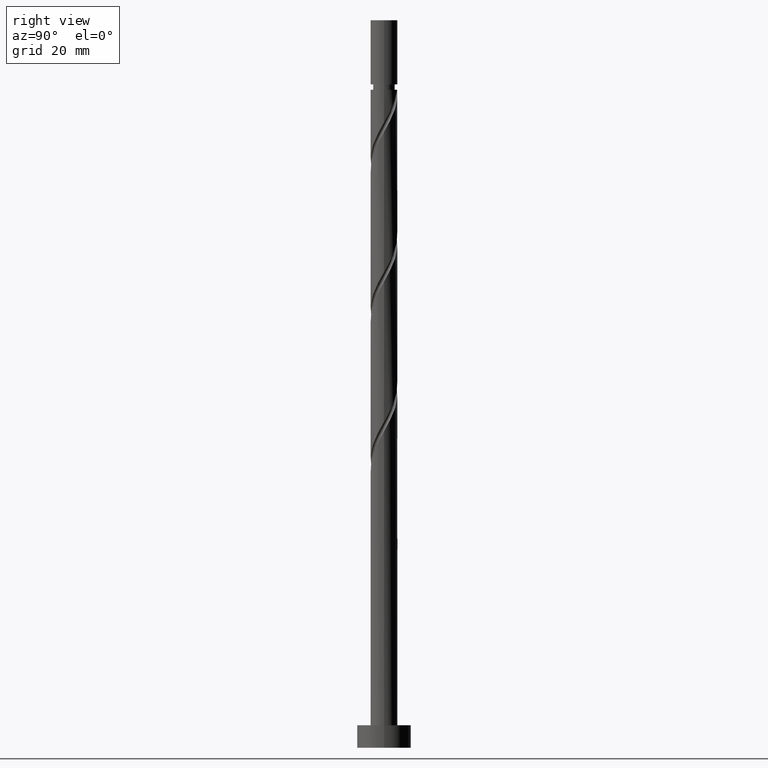
[diagram: clean part render]
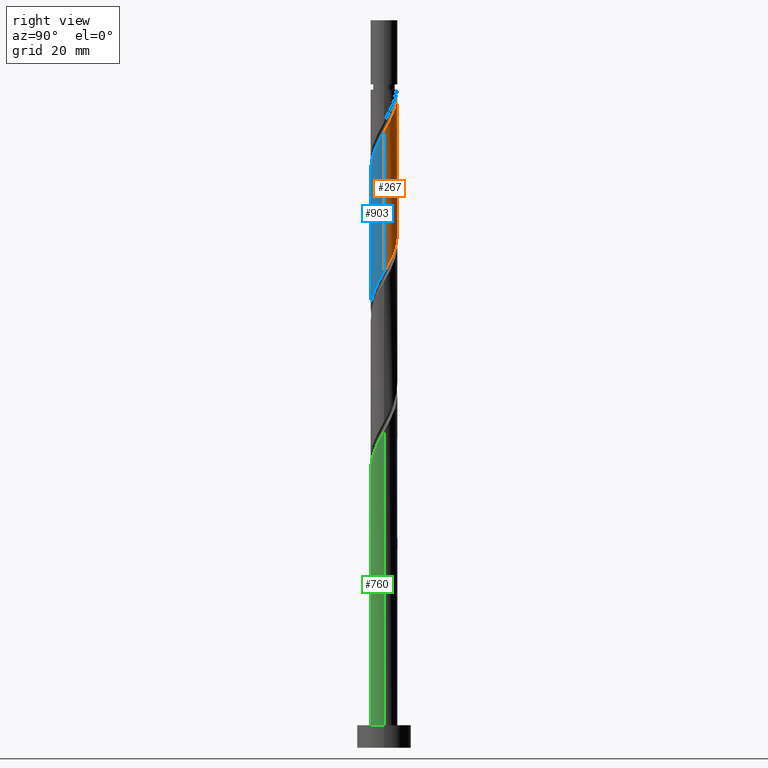
[diagram: same view with three faces highlighted in distinct colors, each labeled with its STEP entity id]
A machine part, right view with three faces highlighted in distinct colors.
Their STEP definitions:

[orange] entity #267 — the highlighted cylindrical surface (edge-blend (fillet) strip) has radius 3 mm, axis along (-0, -0, -1).
#2 = CARTESIAN_POINT ( 'NONE',  ( 2.247618455994269127, 1.987010638188424050, 140.9712133267967715 ) ) ;
#3 = CARTESIAN_POINT ( 'NONE',  ( 2.970074347914948731, 0.5784892297585030319, 106.9434355490189574 ) ) ;
#15 = CARTESIAN_POINT ( 'NONE',  ( -0.9529893618115770071, 2.844610918258236865, 115.9712133267967431 ) ) ;
#79 = ORIENTED_EDGE ( 'NONE', *, *, #499, .T. ) ;
#103 = LINE ( 'NONE', #1462, #628 ) ;
#115 = EDGE_CURVE ( 'NONE', #1361, #215, #1725, .T. ) ;
#127 = CARTESIAN_POINT ( 'NONE',  ( -2.247618455994264242, 1.987010638188423606, 118.7489911045745572 ) ) ;
#136 = DIRECTION ( 'NONE',  ( -1.000000000000000000, 0.000000000000000000, 0.000000000000000000 ) ) ;
#158 = CARTESIAN_POINT ( 'NONE',  ( 1.691106054833253491, 2.509213369244493563, 111.1101022156856288 ) ) ;
#215 = VERTEX_POINT ( 'NONE', #1712 ) ;
#230 = CYLINDRICAL_SURFACE ( 'NONE', #393, 3.000000000000000444 ) ;
#238 = DIRECTION ( 'NONE',  ( -0.000000000000000000, -0.000000000000000000, -1.000000000000000000 ) ) ;
#252 = CARTESIAN_POINT ( 'NONE',  ( 0.5784892297585081389, 2.970074347914953172, 144.4434355490189432 ) ) ;
#261 = CARTESIAN_POINT ( 'NONE',  ( 1.986023542744038251, 2.282915221543595496, 141.6656577712411433 ) ) ;
#267 = ADVANCED_FACE ( 'NONE', ( #1460 ), #230, .T. ) ;
#270 = CARTESIAN_POINT ( 'NONE',  ( 2.501031355072560025, 1.656756518304340675, 109.0267688823523144 ) ) ;
#377 = CARTESIAN_POINT ( 'NONE',  ( 3.000000000000005329, 0.3015113445777617973, 137.6632952629982185 ) ) ;
#393 = AXIS2_PLACEMENT_3D ( 'NONE', #1325, #238, #783 ) ;
#394 = CARTESIAN_POINT ( 'NONE',  ( -3.000000000000000444, 1.973899546557867434E-15, 122.5903355375623676 ) ) ;
#398 = CARTESIAN_POINT ( 'NONE',  ( 3.000000000000000888, 0.09222585497301757917, 106.0868325589238594 ) ) ;
#399 = CARTESIAN_POINT ( 'NONE',  ( -1.656756518304340897, 2.501031355072560025, 117.3601022156856146 ) ) ;
#407 = CARTESIAN_POINT ( 'NONE',  ( 2.719147488601524110, 1.327489493864646874, 108.3323244379078432 ) ) ;
#415 = CARTESIAN_POINT ( 'NONE',  ( 2.685308910273302985, 1.337578430002084540, 139.5823244379078290 ) ) ;
#416 = CARTESIAN_POINT ( 'NONE',  ( -0.5969924622639716238, 2.940000000000000835, 146.5267688823522860 ) ) ;
#428 = VERTEX_POINT ( 'NONE', #792 ) ;
#452 = CARTESIAN_POINT ( 'NONE',  ( -0.5784892297585046972, 2.970074347914948731, 115.2767688823522860 ) ) ;
#499 = EDGE_CURVE ( 'NONE', #428, #588, #103, .T. ) ;
#502 = ORIENTED_EDGE ( 'NONE', *, *, #1328, .F. ) ;
#512 = CARTESIAN_POINT ( 'NONE',  ( -2.940000000000000835, 0.5969924622639725120, 121.5267688823523287 ) ) ;
#522 = CARTESIAN_POINT ( 'NONE',  ( -2.685308910273296323, 1.337578430002084540, 120.1378799934634429 ) ) ;
#551 = CARTESIAN_POINT ( 'NONE',  ( 0.9529893618115807818, 2.844610918258240417, 143.7489911045745714 ) ) ;
#559 = CARTESIAN_POINT ( 'NONE',  ( 0.9840508051709188075, 2.861404451302097751, 112.4989911045745146 ) ) ;
#582 = CARTESIAN_POINT ( 'NONE',  ( -1.327489493864648873, 2.719147488601523666, 116.6656577712411718 ) ) ;
#588 = VERTEX_POINT ( 'NONE', #1402 ) ;
#628 = VECTOR ( 'NONE', #1327, 1000.000000000000000 ) ;
#684 = CARTESIAN_POINT ( 'NONE',  ( 2.994334948306425659, 0.1842775552007367701, 106.2489911045745288 ) ) ;
#695 = EDGE_LOOP ( 'NONE', ( #502, #79, #1675, #897, #1018 ) ) ;
#737 = VECTOR ( 'NONE', #926, 1000.000000000000000 ) ;
#783 = DIRECTION ( 'NONE',  ( -1.000000000000000000, 0.000000000000000000, 0.000000000000000000 ) ) ;
#792 = CARTESIAN_POINT ( 'NONE',  ( 3.000000000000005329, -1.405655737700290034E-15, 137.1298688938089185 ) ) ;
#800 = EDGE_CURVE ( 'NONE', #215, #588, #847, .T. ) ;
#810 = CARTESIAN_POINT ( 'NONE',  ( -0.5969924622639717349, 2.940000000000000835, 146.5267688823522860 ) ) ;
#816 = CARTESIAN_POINT ( 'NONE',  ( 3.000000000000005329, -1.405655737700290232E-15, 137.1298688938089185 ) ) ;
#817 = DIRECTION ( 'NONE',  ( -0.000000000000000000, -0.000000000000000000, -1.000000000000000000 ) ) ;
#818 = CARTESIAN_POINT ( 'NONE',  ( -2.509213369244495340, 1.691106054833251493, 119.4434355490189574 ) ) ;
#827 = VERTEX_POINT ( 'NONE', #416 ) ;
#835 = CARTESIAN_POINT ( 'NONE',  ( 2.282915221543594608, 1.986023542744031589, 109.7212133267967289 ) ) ;
#847 =( BOUNDED_CURVE ( )  B_SPLINE_CURVE ( 2, ( #394, #1497, #512, #1718, #522, #818, #127, #1620, #399, #582, #15, #452, #858, #939, #1475, #559, #1496, #158, #976, #835, #270, #407, #1612, #3, #684, #398, #1224 ),
 .UNSPECIFIED., .F., .T. ) 
 B_SPLINE_CURVE_WITH_KNOTS ( ( 3, 2, 2, 2, 2, 2, 2, 2, 2, 2, 2, 2, 2, 3 ),
 ( 0.4295317669814464612, 0.4375000000000000000, 0.4479166666666666852, 0.4583333333333333148, 0.4687500000000000000, 0.4791666666666666852, 0.4895833333333333148, 0.5000000000000000000, 0.5104166666666666297, 0.5208333333333333703, 0.5312500000000000000, 0.5416666666666666297, 0.5520833333333333703, 0.5545317669814463502 ),
 .UNSPECIFIED. ) 
 CURVE ( )  GEOMETRIC_REPRESENTATION_ITEM ( )  RATIONAL_B_SPLINE_CURVE ( ( 0.9062941362546369506, 0.9031415850403414769, 0.9090909090909166101, 0.9013135103398351999, 0.9090909090909166101, 0.9013135103398351999, 0.9090909090909166101, 0.9013135103398351999, 0.9090909090909166101, 0.9013135103398351999, 0.9090909090909166101, 0.9013135103398351999, 0.9090909090909166101, 0.9013135103398351999, 0.9090909090909166101, 0.9013135103398351999, 0.9090909090909166101, 0.9013135103398351999, 0.9090909090909166101, 0.9013135103398351999, 0.9090909090909166101, 0.9013135103398351999, 0.9090909090909166101, 0.9013135103398351999, 0.9090909090909166101, 0.9072628343904103332, 0.9062941362546369506 ) ) 
 REPRESENTATION_ITEM ( '' )  );
#858 = CARTESIAN_POINT ( 'NONE',  ( -0.1842775552007381856, 2.994334948306425659, 114.5823244379078574 ) ) ;
#897 = ORIENTED_EDGE ( 'NONE', *, *, #115, .F. ) ;
#921 = CARTESIAN_POINT ( 'NONE',  ( 2.509213369244500225, 1.691106054833252381, 140.2767688823522860 ) ) ;
#926 = DIRECTION ( 'NONE',  ( -0.000000000000000000, -0.000000000000000000, -1.000000000000000000 ) ) ;
#928 = CARTESIAN_POINT ( 'NONE',  ( 1.656756518304344672, 2.501031355072561801, 142.3601022156856288 ) ) ;
#939 = CARTESIAN_POINT ( 'NONE',  ( 0.2099341193570284925, 3.018595548697901698, 113.8878799934634003 ) ) ;
#955 = EDGE_CURVE ( 'NONE', #1361, #827, #1185, .T. ) ;
#957 = CARTESIAN_POINT ( 'NONE',  ( -0.2099341193570253006, 3.018595548697906139, 145.8323244379078574 ) ) ;
#976 = CARTESIAN_POINT ( 'NONE',  ( 1.987010638188424938, 2.247618455994262465, 110.4156577712412144 ) ) ;
#1018 = ORIENTED_EDGE ( 'NONE', *, *, #955, .T. ) ;
#1023 =( BOUNDED_CURVE ( )  B_SPLINE_CURVE ( 2, ( #816, #377, #1203, #1067, #415, #921, #2, #261, #928, #1729, #551, #252, #1358, #957, #810 ),
 .UNSPECIFIED., .F., .F. ) 
 B_SPLINE_CURVE_WITH_KNOTS ( ( 3, 2, 2, 2, 2, 2, 2, 3 ),
 ( 0.6795317669814462391, 0.6875000000000000000, 0.6979166666666667407, 0.7083333333333332593, 0.7187500000000000000, 0.7291666666666667407, 0.7395833333333332593, 0.7500000000000000000 ),
 .UNSPECIFIED. ) 
 CURVE ( )  GEOMETRIC_REPRESENTATION_ITEM ( )  RATIONAL_B_SPLINE_CURVE ( ( 0.9062941362546431678, 0.9031415850403474721, 0.9090909090909228274, 0.9013135103398413062, 0.9090909090909228274, 0.9013135103398413062, 0.9090909090909228274, 0.9013135103398413062, 0.9090909090909228274, 0.9013135103398413062, 0.9090909090909228274, 0.9013135103398413062, 0.9090909090909228274, 0.9013135103398413062, 0.9090909090909228274 ) ) 
 REPRESENTATION_ITEM ( '' )  );
#1067 = CARTESIAN_POINT ( 'NONE',  ( 2.861404451302104412, 0.9840508051709162540, 138.8878799934633435 ) ) ;
#1185 = CIRCLE ( 'NONE', #1329, 2.999999999999994671 ) ;
#1203 = CARTESIAN_POINT ( 'NONE',  ( 2.940000000000005720, 0.5969924622639724010, 138.1934355490190285 ) ) ;
#1224 = CARTESIAN_POINT ( 'NONE',  ( 3.000000000000000888, -3.738446110905052766E-15, 105.9236688708956962 ) ) ;
#1325 = CARTESIAN_POINT ( 'NONE',  ( 0.000000000000000000, 0.000000000000000000, 162.0000000000000000 ) ) ;
#1327 = DIRECTION ( 'NONE',  ( -0.000000000000000000, -0.000000000000000000, -1.000000000000000000 ) ) ;
#1328 = EDGE_CURVE ( 'NONE', #428, #827, #1023, .T. ) ;
#1329 = AXIS2_PLACEMENT_3D ( 'NONE', #1379, #817, #136 ) ;
#1358 = CARTESIAN_POINT ( 'NONE',  ( 0.1842775552007414608, 2.994334948306429656, 145.1378799934634571 ) ) ;
#1361 = VERTEX_POINT ( 'NONE', #1457 ) ;
#1379 = CARTESIAN_POINT ( 'NONE',  ( 0.000000000000000000, 0.000000000000000000, 146.5267688823523144 ) ) ;
#1402 = CARTESIAN_POINT ( 'NONE',  ( 3.000000000000000888, -3.738446110905052766E-15, 105.9236688708956962 ) ) ;
#1455 = CARTESIAN_POINT ( 'NONE',  ( -3.000000000000000444, 0.000000000000000000, 162.0000000000000000 ) ) ;
#1457 = CARTESIAN_POINT ( 'NONE',  ( -2.999999999999994671, 0.000000000000000000, 146.5267688823523144 ) ) ;
#1460 = FACE_OUTER_BOUND ( 'NONE', #695, .T. ) ;
#1462 = CARTESIAN_POINT ( 'NONE',  ( 3.000000000000000444, 3.673940397442060361E-16, 162.0000000000000000 ) ) ;
#1475 = CARTESIAN_POINT ( 'NONE',  ( 0.5969924622639731782, 2.940000000000000835, 113.1934355490189716 ) ) ;
#1496 = CARTESIAN_POINT ( 'NONE',  ( 1.337578430002086538, 2.685308910273295435, 111.8045466601301001 ) ) ;
#1497 = CARTESIAN_POINT ( 'NONE',  ( -3.000000000000000444, 0.3015113445777714007, 122.0569091683731244 ) ) ;
#1612 = CARTESIAN_POINT ( 'NONE',  ( 2.844610918258237753, 0.9529893618115753418, 107.6378799934634287 ) ) ;
#1620 = CARTESIAN_POINT ( 'NONE',  ( -1.986023542744032921, 2.282915221543593720, 118.0545466601300717 ) ) ;
#1675 = ORIENTED_EDGE ( 'NONE', *, *, #800, .F. ) ;
#1712 = CARTESIAN_POINT ( 'NONE',  ( -3.000000000000000444, 1.973899546557867434E-15, 122.5903355375623676 ) ) ;
#1718 = CARTESIAN_POINT ( 'NONE',  ( -2.861404451302098639, 0.9840508051709164761, 120.8323244379078290 ) ) ;
#1725 = LINE ( 'NONE', #1455, #737 ) ;
#1729 = CARTESIAN_POINT ( 'NONE',  ( 1.327489493864653314, 2.719147488601527662, 143.0545466601300575 ) ) ;

[blue] entity #903 — the highlighted cylindrical surface (edge-blend (fillet) strip) has radius 3 mm, axis along (-0, -0, -1).
#10 = CARTESIAN_POINT ( 'NONE',  ( 0.9529893618115764520, -2.844610918258237309, 99.30454666013010012 ) ) ;
#20 = DIRECTION ( 'NONE',  ( -0.000000000000000000, -0.000000000000000000, -1.000000000000000000 ) ) ;
#45 = CARTESIAN_POINT ( 'NONE',  ( 1.656756518304339565, -2.501031355072560025, 100.6934355490189859 ) ) ;
#47 = ORIENTED_EDGE ( 'NONE', *, *, #1706, .T. ) ;
#65 = EDGE_CURVE ( 'NONE', #633, #428, #659, .T. ) ;
#72 = CARTESIAN_POINT ( 'NONE',  ( -3.000000000000000444, 0.000000000000000000, 162.0000000000000000 ) ) ;
#103 = LINE ( 'NONE', #1462, #628 ) ;
#131 = CARTESIAN_POINT ( 'NONE',  ( 1.337578430002084540, -2.685308910273302985, 131.2489911045745146 ) ) ;
#157 = CARTESIAN_POINT ( 'NONE',  ( 3.000000000000000888, -0.3015113445777659607, 105.3902425017064246 ) ) ;
#162 = CARTESIAN_POINT ( 'NONE',  ( -2.861404451302104412, -0.9840508051709164761, 122.2212133267967573 ) ) ;
#182 = CARTESIAN_POINT ( 'NONE',  ( -3.000000000000000888, -0.09222585497301845348, 89.42016589225718803 ) ) ;
#189 = CARTESIAN_POINT ( 'NONE',  ( 2.994334948306429656, -0.1842775552007413498, 136.8045466601300859 ) ) ;
#224 = LINE ( 'NONE', #72, #832 ) ;
#256 = CARTESIAN_POINT ( 'NONE',  ( -3.000000000000000888, -5.398316184146896257E-15, 89.25700220422902476 ) ) ;
#285 = CARTESIAN_POINT ( 'NONE',  ( 1.327489493864648207, -2.719147488601524110, 99.99899110457447193 ) ) ;
#288 = ORIENTED_EDGE ( 'NONE', *, *, #65, .F. ) ;
#290 = CARTESIAN_POINT ( 'NONE',  ( -0.9529893618115804488, -2.844610918258240417, 127.0823244379078716 ) ) ;
#293 = CARTESIAN_POINT ( 'NONE',  ( 0.1842775552007368811, -2.994334948306425659, 97.91565777124120018 ) ) ;
#308 = CARTESIAN_POINT ( 'NONE',  ( -2.994334948306425659, -0.1842775552007378248, 89.58232443790787158 ) ) ;
#325 = CARTESIAN_POINT ( 'NONE',  ( 2.844610918258240861, -0.9529893618115807818, 135.4156577712412286 ) ) ;
#424 = CARTESIAN_POINT ( 'NONE',  ( -0.5969924622639727341, -2.940000000000000835, 96.52676888235232866 ) ) ;
#428 = VERTEX_POINT ( 'NONE', #792 ) ;
#437 = CARTESIAN_POINT ( 'NONE',  ( -2.247618455994267350, -1.987010638188425382, 124.3045466601300859 ) ) ;
#445 = CARTESIAN_POINT ( 'NONE',  ( -1.986023542744037140, -2.282915221543596385, 124.9989911045744861 ) ) ;
#475 = CARTESIAN_POINT ( 'NONE',  ( 3.000000000000005329, -0.09222585497302299151, 136.9667052057807837 ) ) ;
#499 = EDGE_CURVE ( 'NONE', #428, #588, #103, .T. ) ;
#544 = AXIS2_PLACEMENT_3D ( 'NONE', #1483, #20, #1214 ) ;
#556 = CARTESIAN_POINT ( 'NONE',  ( 1.987010638188425382, -2.247618455994267794, 132.6378799934634287 ) ) ;
#565 = CARTESIAN_POINT ( 'NONE',  ( -1.691106054833251937, -2.509213369244495340, 94.44343554901892901 ) ) ;
#569 = CARTESIAN_POINT ( 'NONE',  ( -3.000000000000005329, -0.3015113445777636847, 120.9966285963315187 ) ) ;
#571 = CARTESIAN_POINT ( 'NONE',  ( 2.247618455994262909, -1.987010638188424938, 102.0823244379078574 ) ) ;
#575 = CARTESIAN_POINT ( 'NONE',  ( 2.282915221543596385, -1.986023542744037140, 133.3323244379078574 ) ) ;
#577 = CARTESIAN_POINT ( 'NONE',  ( -2.970074347914947843, -0.5784892297585041421, 90.27676888235230024 ) ) ;
#588 = VERTEX_POINT ( 'NONE', #1402 ) ;
#597 = CARTESIAN_POINT ( 'NONE',  ( -0.9840508051709171422, -2.861404451302098639, 95.83232443790782895 ) ) ;
#628 = VECTOR ( 'NONE', #1327, 1000.000000000000000 ) ;
#633 = VERTEX_POINT ( 'NONE', #1750 ) ;
#641 = CARTESIAN_POINT ( 'NONE',  ( 3.000000000000005329, -1.405655737700290232E-15, 137.1298688938089185 ) ) ;
#659 =( BOUNDED_CURVE ( )  B_SPLINE_CURVE ( 2, ( #1645, #569, #688, #162, #1081, #1098, #437, #445, #970, #1500, #290, #1486, #1513, #713, #840, #986, #131, #1243, #556, #575, #1107, #1134, #325, #875, #189, #475, #641 ),
 .UNSPECIFIED., .F., .T. ) 
 B_SPLINE_CURVE_WITH_KNOTS ( ( 3, 2, 2, 2, 2, 2, 2, 2, 2, 2, 2, 2, 2, 3 ),
 ( 0.5545317669814462391, 0.5625000000000000000, 0.5729166666666667407, 0.5833333333333332593, 0.5937500000000000000, 0.6041666666666667407, 0.6145833333333332593, 0.6250000000000000000, 0.6354166666666667407, 0.6458333333333332593, 0.6562500000000000000, 0.6666666666666667407, 0.6770833333333332593, 0.6795317669814462391 ),
 .UNSPECIFIED. ) 
 CURVE ( )  GEOMETRIC_REPRESENTATION_ITEM ( )  RATIONAL_B_SPLINE_CURVE ( ( 0.9062941362546431678, 0.9031415850403474721, 0.9090909090909228274, 0.9013135103398413062, 0.9090909090909228274, 0.9013135103398413062, 0.9090909090909228274, 0.9013135103398413062, 0.9090909090909228274, 0.9013135103398413062, 0.9090909090909228274, 0.9013135103398413062, 0.9090909090909228274, 0.9013135103398413062, 0.9090909090909228274, 0.9013135103398413062, 0.9090909090909228274, 0.9013135103398413062, 0.9090909090909228274, 0.9013135103398413062, 0.9090909090909228274, 0.9013135103398413062, 0.9090909090909228274, 0.9013135103398413062, 0.9090909090909228274, 0.9072628343904165504, 0.9062941362546431678 ) ) 
 REPRESENTATION_ITEM ( '' )  );
#688 = CARTESIAN_POINT ( 'NONE',  ( -2.940000000000005720, -0.5969924622639727341, 121.5267688823523429 ) ) ;
#707 = CARTESIAN_POINT ( 'NONE',  ( -1.337578430002084762, -2.685308910273296323, 95.13787999346341451 ) ) ;
#713 = CARTESIAN_POINT ( 'NONE',  ( 0.2099341193570271047, -3.018595548697906139, 129.1656577712411718 ) ) ;
#740 = VERTEX_POINT ( 'NONE', #256 ) ;
#792 = CARTESIAN_POINT ( 'NONE',  ( 3.000000000000005329, -1.405655737700290034E-15, 137.1298688938089185 ) ) ;
#832 = VECTOR ( 'NONE', #1535, 1000.000000000000000 ) ;
#834 = CARTESIAN_POINT ( 'NONE',  ( -2.844610918258236865, -0.9529893618115766740, 90.97121332679675731 ) ) ;
#840 = CARTESIAN_POINT ( 'NONE',  ( 0.5969924622639725120, -2.940000000000005720, 129.8601022156856288 ) ) ;
#875 = CARTESIAN_POINT ( 'NONE',  ( 2.970074347914952728, -0.5784892297585078058, 136.1101022156856288 ) ) ;
#903 = ADVANCED_FACE ( 'NONE', ( #1239 ), #1491, .T. ) ;
#965 = CARTESIAN_POINT ( 'NONE',  ( -2.719147488601524110, -1.327489493864648207, 91.66565777124118597 ) ) ;
#970 = CARTESIAN_POINT ( 'NONE',  ( -1.656756518304344228, -2.501031355072562690, 125.6934355490189859 ) ) ;
#974 = CARTESIAN_POINT ( 'NONE',  ( 2.940000000000000835, -0.5969924622639729561, 104.8601022156856430 ) ) ;
#986 = CARTESIAN_POINT ( 'NONE',  ( 0.9840508051709162540, -2.861404451302104412, 130.5545466601300575 ) ) ;
#996 = CARTESIAN_POINT ( 'NONE',  ( -3.000000000000000888, -5.398316184146896257E-15, 89.25700220422902476 ) ) ;
#1081 = CARTESIAN_POINT ( 'NONE',  ( -2.685308910273302541, -1.337578430002085428, 122.9156577712412144 ) ) ;
#1098 = CARTESIAN_POINT ( 'NONE',  ( -2.509213369244499781, -1.691106054833252825, 123.6101022156856146 ) ) ;
#1107 = CARTESIAN_POINT ( 'NONE',  ( 2.501031355072561801, -1.656756518304345338, 134.0267688823522576 ) ) ;
#1109 = CARTESIAN_POINT ( 'NONE',  ( 3.000000000000000888, -3.738446110905052766E-15, 105.9236688708956962 ) ) ;
#1127 = CARTESIAN_POINT ( 'NONE',  ( -2.501031355072559137, -1.656756518304340897, 92.36010221568565726 ) ) ;
#1134 = CARTESIAN_POINT ( 'NONE',  ( 2.719147488601527662, -1.327489493864652870, 134.7212133267967431 ) ) ;
#1205 =( BOUNDED_CURVE ( )  B_SPLINE_CURVE ( 2, ( #1109, #157, #974, #1495, #1404, #1517, #571, #1262, #45, #285, #10, #1503, #293, #1640, #424, #597, #707, #565, #1232, #1508, #1127, #965, #834, #577, #308, #182, #996 ),
 .UNSPECIFIED., .F., .T. ) 
 B_SPLINE_CURVE_WITH_KNOTS ( ( 3, 2, 2, 2, 2, 2, 2, 2, 2, 2, 2, 2, 2, 3 ),
 ( 0.5545317669814463502, 0.5625000000000000000, 0.5729166666666666297, 0.5833333333333333703, 0.5937500000000000000, 0.6041666666666666297, 0.6145833333333333703, 0.6250000000000000000, 0.6354166666666666297, 0.6458333333333333703, 0.6562500000000000000, 0.6666666666666666297, 0.6770833333333333703, 0.6795317669814463502 ),
 .UNSPECIFIED. ) 
 CURVE ( )  GEOMETRIC_REPRESENTATION_ITEM ( )  RATIONAL_B_SPLINE_CURVE ( ( 0.9062941362546369506, 0.9031415850403413659, 0.9090909090909166101, 0.9013135103398351999, 0.9090909090909166101, 0.9013135103398351999, 0.9090909090909166101, 0.9013135103398351999, 0.9090909090909166101, 0.9013135103398351999, 0.9090909090909166101, 0.9013135103398351999, 0.9090909090909166101, 0.9013135103398351999, 0.9090909090909166101, 0.9013135103398351999, 0.9090909090909166101, 0.9013135103398351999, 0.9090909090909166101, 0.9013135103398351999, 0.9090909090909166101, 0.9013135103398351999, 0.9090909090909166101, 0.9013135103398351999, 0.9090909090909166101, 0.9072628343904103332, 0.9062941362546369506 ) ) 
 REPRESENTATION_ITEM ( '' )  );
#1214 = DIRECTION ( 'NONE',  ( -1.000000000000000000, 0.000000000000000000, 0.000000000000000000 ) ) ;
#1232 = CARTESIAN_POINT ( 'NONE',  ( -1.987010638188424938, -2.247618455994264242, 93.74899110457452878 ) ) ;
#1239 = FACE_OUTER_BOUND ( 'NONE', #1556, .T. ) ;
#1243 = CARTESIAN_POINT ( 'NONE',  ( 1.691106054833252381, -2.509213369244500225, 131.9434355490189432 ) ) ;
#1262 = CARTESIAN_POINT ( 'NONE',  ( 1.986023542744031589, -2.282915221543594164, 101.3878799934633861 ) ) ;
#1284 = ORIENTED_EDGE ( 'NONE', *, *, #1574, .F. ) ;
#1327 = DIRECTION ( 'NONE',  ( -0.000000000000000000, -0.000000000000000000, -1.000000000000000000 ) ) ;
#1384 = ORIENTED_EDGE ( 'NONE', *, *, #499, .F. ) ;
#1402 = CARTESIAN_POINT ( 'NONE',  ( 3.000000000000000888, -3.738446110905052766E-15, 105.9236688708956962 ) ) ;
#1404 = CARTESIAN_POINT ( 'NONE',  ( 2.685308910273295435, -1.337578430002086538, 103.4712133267967573 ) ) ;
#1462 = CARTESIAN_POINT ( 'NONE',  ( 3.000000000000000444, 3.673940397442060361E-16, 162.0000000000000000 ) ) ;
#1483 = CARTESIAN_POINT ( 'NONE',  ( 0.000000000000000000, 0.000000000000000000, 162.0000000000000000 ) ) ;
#1486 = CARTESIAN_POINT ( 'NONE',  ( -0.5784892297585065846, -2.970074347914953616, 127.7767688823523144 ) ) ;
#1491 = CYLINDRICAL_SURFACE ( 'NONE', #544, 3.000000000000000444 ) ;
#1495 = CARTESIAN_POINT ( 'NONE',  ( 2.861404451302097751, -0.9840508051709188075, 104.1656577712411718 ) ) ;
#1500 = CARTESIAN_POINT ( 'NONE',  ( -1.327489493864652648, -2.719147488601527662, 126.3878799934633719 ) ) ;
#1503 = CARTESIAN_POINT ( 'NONE',  ( 0.5784892297585031429, -2.970074347914948731, 98.61010221568561462 ) ) ;
#1508 = CARTESIAN_POINT ( 'NONE',  ( -2.282915221543594608, -1.986023542744032033, 93.05454666013004328 ) ) ;
#1513 = CARTESIAN_POINT ( 'NONE',  ( -0.1842775552007397399, -2.994334948306429656, 128.4712133267967431 ) ) ;
#1517 = CARTESIAN_POINT ( 'NONE',  ( 2.509213369244494007, -1.691106054833253047, 102.7767688823523002 ) ) ;
#1535 = DIRECTION ( 'NONE',  ( -0.000000000000000000, -0.000000000000000000, -1.000000000000000000 ) ) ;
#1556 = EDGE_LOOP ( 'NONE', ( #1384, #288, #47, #1284 ) ) ;
#1574 = EDGE_CURVE ( 'NONE', #588, #740, #1205, .T. ) ;
#1640 = CARTESIAN_POINT ( 'NONE',  ( -0.2099341193570293806, -3.018595548697902142, 97.22121332679671468 ) ) ;
#1645 = CARTESIAN_POINT ( 'NONE',  ( -3.000000000000005329, 3.648723404243305719E-15, 120.4632022271422471 ) ) ;
#1706 = EDGE_CURVE ( 'NONE', #633, #740, #224, .T. ) ;
#1750 = CARTESIAN_POINT ( 'NONE',  ( -3.000000000000005329, 3.648723404243305719E-15, 120.4632022271422613 ) ) ;

[green] entity #760 — the highlighted cylindrical surface (edge-blend (fillet) strip) has radius 3 mm, axis along (-0, -0, -1).
#76 = VECTOR ( 'NONE', #243, 1000.000000000000000 ) ;
#95 = CARTESIAN_POINT ( 'NONE',  ( -3.000000000000005773, 6.833879490734389093E-15, 53.79653556047554730 ) ) ;
#105 = AXIS2_PLACEMENT_3D ( 'NONE', #844, #540, #482 ) ;
#184 = CARTESIAN_POINT ( 'NONE',  ( 2.719147488601527662, -1.327489493864652870, 68.05454666013007170 ) ) ;
#192 = LINE ( 'NONE', #336, #705 ) ;
#207 = CARTESIAN_POINT ( 'NONE',  ( 2.844610918258240861, -0.9529893618115807818, 68.74899110457454299 ) ) ;
#243 = DIRECTION ( 'NONE',  ( -0.000000000000000000, -0.000000000000000000, -1.000000000000000000 ) ) ;
#265 = CARTESIAN_POINT ( 'NONE',  ( -2.940000000000005720, -0.5969924622639727341, 54.86010221568563594 ) ) ;
#269 = CARTESIAN_POINT ( 'NONE',  ( 3.000000000000000444, 3.673940397442060361E-16, 5.000000000000000000 ) ) ;
#283 =( BOUNDED_CURVE ( )  B_SPLINE_CURVE ( 2, ( #689, #1209, #265, #1607, #1480, #814, #1680, #473, #729, #1431, #483, #1008, #600, #883, #1130, #1416, #751, #1546, #1528, #321, #1285, #184, #207, #1691, #391, #1739, #545 ),
 .UNSPECIFIED., .F., .T. ) 
 B_SPLINE_CURVE_WITH_KNOTS ( ( 3, 2, 2, 2, 2, 2, 2, 2, 2, 2, 2, 2, 2, 3 ),
 ( 0.05453176698144625995, 0.06250000000000000000, 0.07291666666666662966, 0.08333333333333337034, 0.09375000000000000000, 0.1041666666666666297, 0.1145833333333333703, 0.1250000000000000000, 0.1354166666666666297, 0.1458333333333333703, 0.1562500000000000000, 0.1666666666666666297, 0.1770833333333333703, 0.1795317669814463779 ),
 .UNSPECIFIED. ) 
 CURVE ( )  GEOMETRIC_REPRESENTATION_ITEM ( )  RATIONAL_B_SPLINE_CURVE ( ( 0.9062941362546430568, 0.9031415850403473611, 0.9090909090909228274, 0.9013135103398413062, 0.9090909090909228274, 0.9013135103398413062, 0.9090909090909228274, 0.9013135103398413062, 0.9090909090909228274, 0.9013135103398413062, 0.9090909090909228274, 0.9013135103398413062, 0.9090909090909228274, 0.9013135103398413062, 0.9090909090909228274, 0.9013135103398413062, 0.9090909090909228274, 0.9013135103398413062, 0.9090909090909228274, 0.9013135103398413062, 0.9090909090909228274, 0.9013135103398413062, 0.9090909090909228274, 0.9013135103398413062, 0.9090909090909228274, 0.9072628343904165504, 0.9062941362546431678 ) ) 
 REPRESENTATION_ITEM ( '' )  );
#321 = CARTESIAN_POINT ( 'NONE',  ( 2.282915221543596385, -1.986023542744037140, 66.66565777124117176 ) ) ;
#336 = CARTESIAN_POINT ( 'NONE',  ( 3.000000000000000444, 3.673940397442060361E-16, 162.0000000000000000 ) ) ;
#391 = CARTESIAN_POINT ( 'NONE',  ( 2.994334948306429656, -0.1842775552007413498, 70.13787999346341451 ) ) ;
#457 = VERTEX_POINT ( 'NONE', #508 ) ;
#462 = VERTEX_POINT ( 'NONE', #95 ) ;
#473 = CARTESIAN_POINT ( 'NONE',  ( -1.986023542744037140, -2.282915221543596385, 58.33232443790784316 ) ) ;
#482 = DIRECTION ( 'NONE',  ( 1.000000000000000000, 0.000000000000000000, 0.000000000000000000 ) ) ;
#483 = CARTESIAN_POINT ( 'NONE',  ( -0.9529893618115804488, -2.844610918258240417, 60.41565777124120018 ) ) ;
#508 = CARTESIAN_POINT ( 'NONE',  ( 3.000000000000005773, -3.738446110905027621E-16, 70.46320222714223291 ) ) ;
#540 = DIRECTION ( 'NONE',  ( 0.000000000000000000, 0.000000000000000000, 1.000000000000000000 ) ) ;
#545 = CARTESIAN_POINT ( 'NONE',  ( 3.000000000000006217, -3.738446110905027621E-16, 70.46320222714223291 ) ) ;
#600 = CARTESIAN_POINT ( 'NONE',  ( -0.1842775552007397399, -2.994334948306429656, 61.80454666013008591 ) ) ;
#614 = DIRECTION ( 'NONE',  ( -0.000000000000000000, -0.000000000000000000, -1.000000000000000000 ) ) ;
#667 = EDGE_CURVE ( 'NONE', #462, #457, #283, .T. ) ;
#673 = FACE_OUTER_BOUND ( 'NONE', #1746, .T. ) ;
#689 = CARTESIAN_POINT ( 'NONE',  ( -3.000000000000005773, 6.833879490734389093E-15, 53.79653556047555441 ) ) ;
#705 = VECTOR ( 'NONE', #1279, 1000.000000000000000 ) ;
#714 = ORIENTED_EDGE ( 'NONE', *, *, #1396, .T. ) ;
#729 = CARTESIAN_POINT ( 'NONE',  ( -1.656756518304344228, -2.501031355072562690, 59.02676888235227892 ) ) ;
#751 = CARTESIAN_POINT ( 'NONE',  ( 1.337578430002084540, -2.685308910273302985, 64.58232443790787158 ) ) ;
#760 = ADVANCED_FACE ( 'NONE', ( #673 ), #1208, .T. ) ;
#814 = CARTESIAN_POINT ( 'NONE',  ( -2.509213369244499781, -1.691106054833252825, 56.94343554901896454 ) ) ;
#844 = CARTESIAN_POINT ( 'NONE',  ( 0.000000000000000000, 0.000000000000000000, 5.000000000000000000 ) ) ;
#883 = CARTESIAN_POINT ( 'NONE',  ( 0.2099341193570271047, -3.018595548697906139, 62.49899110457450746 ) ) ;
#907 = VERTEX_POINT ( 'NONE', #1233 ) ;
#962 = AXIS2_PLACEMENT_3D ( 'NONE', #1280, #614, #1147 ) ;
#1007 = EDGE_CURVE ( 'NONE', #907, #1408, #1271, .T. ) ;
#1008 = CARTESIAN_POINT ( 'NONE',  ( -0.5784892297585065846, -2.970074347914953616, 61.11010221568563594 ) ) ;
#1130 = CARTESIAN_POINT ( 'NONE',  ( 0.5969924622639725120, -2.940000000000005720, 63.19343554901896454 ) ) ;
#1147 = DIRECTION ( 'NONE',  ( -1.000000000000000000, 0.000000000000000000, 0.000000000000000000 ) ) ;
#1208 = CYLINDRICAL_SURFACE ( 'NONE', #962, 3.000000000000000444 ) ;
#1209 = CARTESIAN_POINT ( 'NONE',  ( -3.000000000000006217, -0.3015113445777613532, 54.32996192966483306 ) ) ;
#1213 = CARTESIAN_POINT ( 'NONE',  ( -3.000000000000000444, 0.000000000000000000, 162.0000000000000000 ) ) ;
#1230 = EDGE_CURVE ( 'NONE', #457, #1408, #192, .T. ) ;
#1233 = CARTESIAN_POINT ( 'NONE',  ( -3.000000000000000444, 0.000000000000000000, 5.000000000000000000 ) ) ;
#1264 = ORIENTED_EDGE ( 'NONE', *, *, #1230, .F. ) ;
#1271 = CIRCLE ( 'NONE', #105, 3.000000000000000444 ) ;
#1279 = DIRECTION ( 'NONE',  ( -0.000000000000000000, -0.000000000000000000, -1.000000000000000000 ) ) ;
#1280 = CARTESIAN_POINT ( 'NONE',  ( 0.000000000000000000, 0.000000000000000000, 162.0000000000000000 ) ) ;
#1285 = CARTESIAN_POINT ( 'NONE',  ( 2.501031355072561801, -1.656756518304345338, 67.36010221568565726 ) ) ;
#1396 = EDGE_CURVE ( 'NONE', #462, #907, #1482, .T. ) ;
#1406 = ORIENTED_EDGE ( 'NONE', *, *, #1007, .T. ) ;
#1408 = VERTEX_POINT ( 'NONE', #269 ) ;
#1416 = CARTESIAN_POINT ( 'NONE',  ( 0.9840508051709162540, -2.861404451302104412, 63.88787999346340030 ) ) ;
#1431 = CARTESIAN_POINT ( 'NONE',  ( -1.327489493864652648, -2.719147488601527662, 59.72121332679675021 ) ) ;
#1480 = CARTESIAN_POINT ( 'NONE',  ( -2.685308910273302541, -1.337578430002085428, 56.24899110457452878 ) ) ;
#1482 = LINE ( 'NONE', #1213, #76 ) ;
#1528 = CARTESIAN_POINT ( 'NONE',  ( 1.987010638188425382, -2.247618455994267794, 65.97121332679675731 ) ) ;
#1546 = CARTESIAN_POINT ( 'NONE',  ( 1.691106054833252381, -2.509213369244500225, 65.27676888235230024 ) ) ;
#1607 = CARTESIAN_POINT ( 'NONE',  ( -2.861404451302104412, -0.9840508051709164761, 55.55454666013005749 ) ) ;
#1679 = ORIENTED_EDGE ( 'NONE', *, *, #667, .F. ) ;
#1680 = CARTESIAN_POINT ( 'NONE',  ( -2.247618455994267350, -1.987010638188425382, 57.63787999346341451 ) ) ;
#1691 = CARTESIAN_POINT ( 'NONE',  ( 2.970074347914952728, -0.5784892297585078058, 69.44343554901895743 ) ) ;
#1739 = CARTESIAN_POINT ( 'NONE',  ( 3.000000000000005329, -0.09222585497302096535, 70.30003853911408385 ) ) ;
#1746 = EDGE_LOOP ( 'NONE', ( #1264, #1679, #714, #1406 ) ) ;